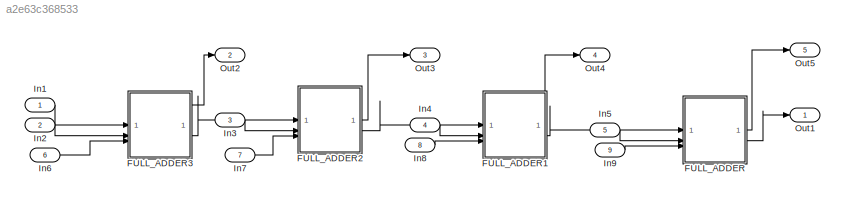
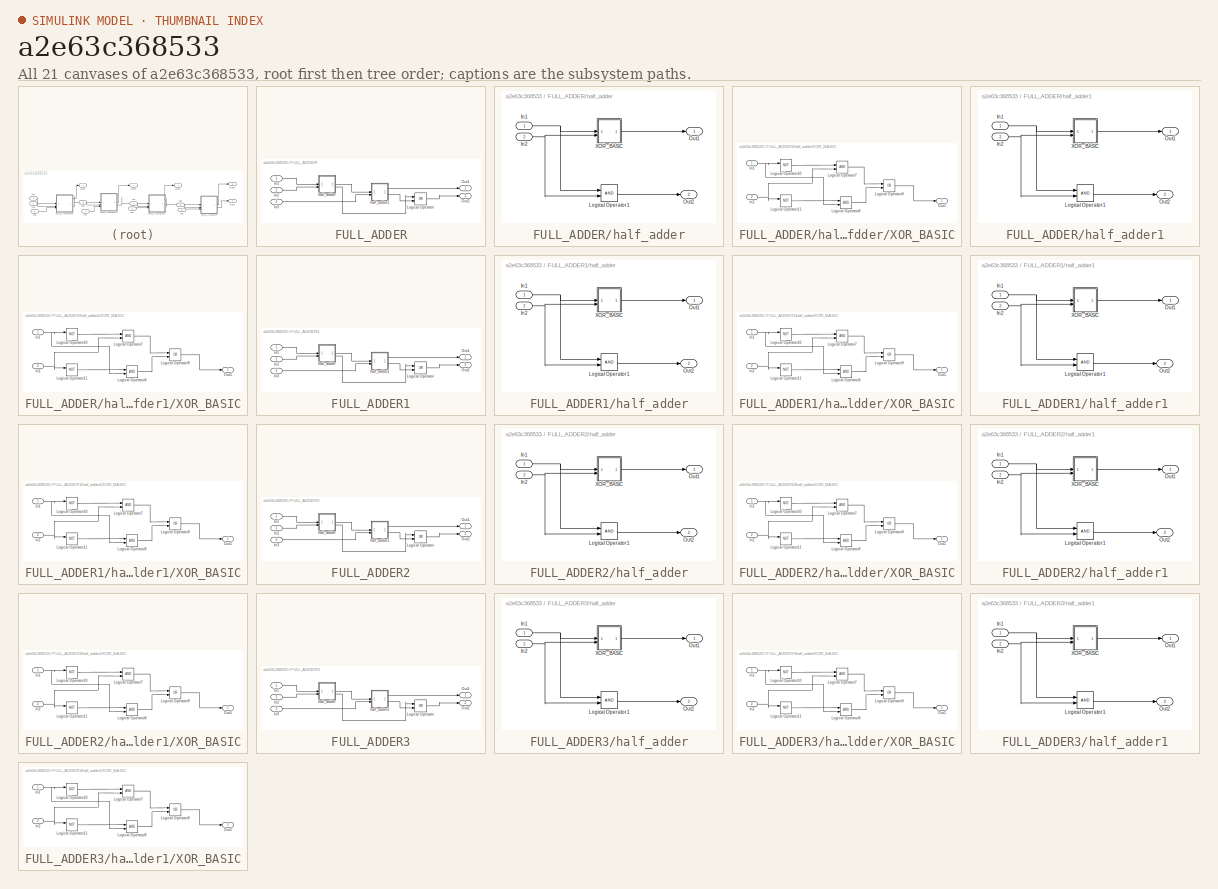
[diagram: thumbnail index - all 21 canvases of the model, root first then tree order]
MODEL slx_a2e63c368533
KIND model
CONFIG AbsTol = auto
CONFIG EnableMultiTasking = off
CONFIG FixedStep = auto
CONFIG MaxStep = auto
CONFIG MinStep = auto
CONFIG RelTol = 1e-3
CONFIG SampleTimeConstraint = Unconstrained
CONFIG SolverName = VariableStepAuto
CONFIG StartTime = 0.0
CONFIG StopTime = 10.0
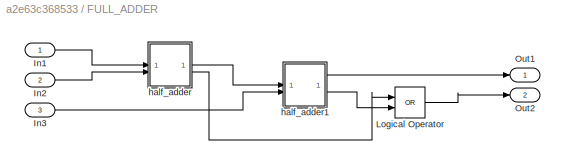
BLOCK [SubSystem] FULL_ADDER
BLOCK [Inport] FULL_ADDER/In1
BLOCK [Inport] FULL_ADDER/In2
  Port = 2
BLOCK [Inport] FULL_ADDER/In3
  Port = 3
BLOCK [Logic] FULL_ADDER/Logical Operator
  AllPortsSameDT = off
  Operator = OR
  OutDataTypeStr = boolean
BLOCK [Outport] FULL_ADDER/Out1
BLOCK [Outport] FULL_ADDER/Out2
  Port = 2
BLOCK [SubSystem] FULL_ADDER/half_adder
BLOCK [Inport] FULL_ADDER/half_adder/In1
BLOCK [Inport] FULL_ADDER/half_adder/In2
  Port = 2
BLOCK [Logic] FULL_ADDER/half_adder/Logical Operator1
  AllPortsSameDT = off
  OutDataTypeStr = boolean
BLOCK [Outport] FULL_ADDER/half_adder/Out1
BLOCK [Outport] FULL_ADDER/half_adder/Out2
  Port = 2
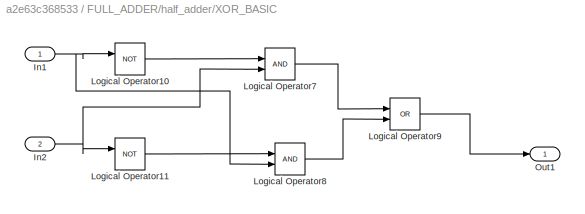
BLOCK [SubSystem] FULL_ADDER/half_adder/XOR_BASIC
BLOCK [Inport] FULL_ADDER/half_adder/XOR_BASIC/In1
BLOCK [Inport] FULL_ADDER/half_adder/XOR_BASIC/In2
  Port = 2
BLOCK [Logic] FULL_ADDER/half_adder/XOR_BASIC/Logical Operator10
  AllPortsSameDT = off
  IconShape = distinctive
  Operator = NOT
  OutDataTypeStr = boolean
BLOCK [Logic] FULL_ADDER/half_adder/XOR_BASIC/Logical Operator11
  AllPortsSameDT = off
  IconShape = distinctive
  Operator = NOT
  OutDataTypeStr = boolean
BLOCK [Logic] FULL_ADDER/half_adder/XOR_BASIC/Logical Operator7
  AllPortsSameDT = off
  IconShape = distinctive
  OutDataTypeStr = boolean
BLOCK [Logic] FULL_ADDER/half_adder/XOR_BASIC/Logical Operator8
  AllPortsSameDT = off
  IconShape = distinctive
  OutDataTypeStr = boolean
BLOCK [Logic] FULL_ADDER/half_adder/XOR_BASIC/Logical Operator9
  AllPortsSameDT = off
  IconShape = distinctive
  Operator = OR
  OutDataTypeStr = boolean
BLOCK [Outport] FULL_ADDER/half_adder/XOR_BASIC/Out1
BLOCK [SubSystem] FULL_ADDER/half_adder1
BLOCK [Inport] FULL_ADDER/half_adder1/In1
BLOCK [Inport] FULL_ADDER/half_adder1/In2
  Port = 2
BLOCK [Logic] FULL_ADDER/half_adder1/Logical Operator1
  AllPortsSameDT = off
  OutDataTypeStr = boolean
BLOCK [Outport] FULL_ADDER/half_adder1/Out1
BLOCK [Outport] FULL_ADDER/half_adder1/Out2
  Port = 2
BLOCK [SubSystem] FULL_ADDER/half_adder1/XOR_BASIC
BLOCK [Inport] FULL_ADDER/half_adder1/XOR_BASIC/In1
BLOCK [Inport] FULL_ADDER/half_adder1/XOR_BASIC/In2
  Port = 2
BLOCK [Logic] FULL_ADDER/half_adder1/XOR_BASIC/Logical Operator10
  AllPortsSameDT = off
  IconShape = distinctive
  Operator = NOT
  OutDataTypeStr = boolean
BLOCK [Logic] FULL_ADDER/half_adder1/XOR_BASIC/Logical Operator11
  AllPortsSameDT = off
  IconShape = distinctive
  Operator = NOT
  OutDataTypeStr = boolean
BLOCK [Logic] FULL_ADDER/half_adder1/XOR_BASIC/Logical Operator7
  AllPortsSameDT = off
  IconShape = distinctive
  OutDataTypeStr = boolean
BLOCK [Logic] FULL_ADDER/half_adder1/XOR_BASIC/Logical Operator8
  AllPortsSameDT = off
  IconShape = distinctive
  OutDataTypeStr = boolean
BLOCK [Logic] FULL_ADDER/half_adder1/XOR_BASIC/Logical Operator9
  AllPortsSameDT = off
  IconShape = distinctive
  Operator = OR
  OutDataTypeStr = boolean
BLOCK [Outport] FULL_ADDER/half_adder1/XOR_BASIC/Out1
BLOCK [SubSystem] FULL_ADDER1
BLOCK [Inport] FULL_ADDER1/In1
BLOCK [Inport] FULL_ADDER1/In2
  Port = 2
BLOCK [Inport] FULL_ADDER1/In3
  Port = 3
BLOCK [Logic] FULL_ADDER1/Logical Operator
  AllPortsSameDT = off
  Operator = OR
  OutDataTypeStr = boolean
BLOCK [Outport] FULL_ADDER1/Out1
BLOCK [Outport] FULL_ADDER1/Out2
  Port = 2
BLOCK [SubSystem] FULL_ADDER1/half_adder
BLOCK [Inport] FULL_ADDER1/half_adder/In1
BLOCK [Inport] FULL_ADDER1/half_adder/In2
  Port = 2
BLOCK [Logic] FULL_ADDER1/half_adder/Logical Operator1
  AllPortsSameDT = off
  OutDataTypeStr = boolean
BLOCK [Outport] FULL_ADDER1/half_adder/Out1
BLOCK [Outport] FULL_ADDER1/half_adder/Out2
  Port = 2
BLOCK [SubSystem] FULL_ADDER1/half_adder/XOR_BASIC
BLOCK [Inport] FULL_ADDER1/half_adder/XOR_BASIC/In1
BLOCK [Inport] FULL_ADDER1/half_adder/XOR_BASIC/In2
  Port = 2
BLOCK [Logic] FULL_ADDER1/half_adder/XOR_BASIC/Logical Operator10
  AllPortsSameDT = off
  IconShape = distinctive
  Operator = NOT
  OutDataTypeStr = boolean
BLOCK [Logic] FULL_ADDER1/half_adder/XOR_BASIC/Logical Operator11
  AllPortsSameDT = off
  IconShape = distinctive
  Operator = NOT
  OutDataTypeStr = boolean
BLOCK [Logic] FULL_ADDER1/half_adder/XOR_BASIC/Logical Operator7
  AllPortsSameDT = off
  IconShape = distinctive
  OutDataTypeStr = boolean
BLOCK [Logic] FULL_ADDER1/half_adder/XOR_BASIC/Logical Operator8
  AllPortsSameDT = off
  IconShape = distinctive
  OutDataTypeStr = boolean
BLOCK [Logic] FULL_ADDER1/half_adder/XOR_BASIC/Logical Operator9
  AllPortsSameDT = off
  IconShape = distinctive
  Operator = OR
  OutDataTypeStr = boolean
BLOCK [Outport] FULL_ADDER1/half_adder/XOR_BASIC/Out1
BLOCK [SubSystem] FULL_ADDER1/half_adder1
BLOCK [Inport] FULL_ADDER1/half_adder1/In1
BLOCK [Inport] FULL_ADDER1/half_adder1/In2
  Port = 2
BLOCK [Logic] FULL_ADDER1/half_adder1/Logical Operator1
  AllPortsSameDT = off
  OutDataTypeStr = boolean
BLOCK [Outport] FULL_ADDER1/half_adder1/Out1
BLOCK [Outport] FULL_ADDER1/half_adder1/Out2
  Port = 2
BLOCK [SubSystem] FULL_ADDER1/half_adder1/XOR_BASIC
BLOCK [Inport] FULL_ADDER1/half_adder1/XOR_BASIC/In1
BLOCK [Inport] FULL_ADDER1/half_adder1/XOR_BASIC/In2
  Port = 2
BLOCK [Logic] FULL_ADDER1/half_adder1/XOR_BASIC/Logical Operator10
  AllPortsSameDT = off
  IconShape = distinctive
  Operator = NOT
  OutDataTypeStr = boolean
BLOCK [Logic] FULL_ADDER1/half_adder1/XOR_BASIC/Logical Operator11
  AllPortsSameDT = off
  IconShape = distinctive
  Operator = NOT
  OutDataTypeStr = boolean
BLOCK [Logic] FULL_ADDER1/half_adder1/XOR_BASIC/Logical Operator7
  AllPortsSameDT = off
  IconShape = distinctive
  OutDataTypeStr = boolean
BLOCK [Logic] FULL_ADDER1/half_adder1/XOR_BASIC/Logical Operator8
  AllPortsSameDT = off
  IconShape = distinctive
  OutDataTypeStr = boolean
BLOCK [Logic] FULL_ADDER1/half_adder1/XOR_BASIC/Logical Operator9
  AllPortsSameDT = off
  IconShape = distinctive
  Operator = OR
  OutDataTypeStr = boolean
BLOCK [Outport] FULL_ADDER1/half_adder1/XOR_BASIC/Out1
BLOCK [SubSystem] FULL_ADDER2
BLOCK [Inport] FULL_ADDER2/In1
BLOCK [Inport] FULL_ADDER2/In2
  Port = 2
BLOCK [Inport] FULL_ADDER2/In3
  Port = 3
BLOCK [Logic] FULL_ADDER2/Logical Operator
  AllPortsSameDT = off
  Operator = OR
  OutDataTypeStr = boolean
BLOCK [Outport] FULL_ADDER2/Out1
BLOCK [Outport] FULL_ADDER2/Out2
  Port = 2
BLOCK [SubSystem] FULL_ADDER2/half_adder
BLOCK [Inport] FULL_ADDER2/half_adder/In1
BLOCK [Inport] FULL_ADDER2/half_adder/In2
  Port = 2
BLOCK [Logic] FULL_ADDER2/half_adder/Logical Operator1
  AllPortsSameDT = off
  OutDataTypeStr = boolean
BLOCK [Outport] FULL_ADDER2/half_adder/Out1
BLOCK [Outport] FULL_ADDER2/half_adder/Out2
  Port = 2
BLOCK [SubSystem] FULL_ADDER2/half_adder/XOR_BASIC
BLOCK [Inport] FULL_ADDER2/half_adder/XOR_BASIC/In1
BLOCK [Inport] FULL_ADDER2/half_adder/XOR_BASIC/In2
  Port = 2
BLOCK [Logic] FULL_ADDER2/half_adder/XOR_BASIC/Logical Operator10
  AllPortsSameDT = off
  IconShape = distinctive
  Operator = NOT
  OutDataTypeStr = boolean
BLOCK [Logic] FULL_ADDER2/half_adder/XOR_BASIC/Logical Operator11
  AllPortsSameDT = off
  IconShape = distinctive
  Operator = NOT
  OutDataTypeStr = boolean
BLOCK [Logic] FULL_ADDER2/half_adder/XOR_BASIC/Logical Operator7
  AllPortsSameDT = off
  IconShape = distinctive
  OutDataTypeStr = boolean
BLOCK [Logic] FULL_ADDER2/half_adder/XOR_BASIC/Logical Operator8
  AllPortsSameDT = off
  IconShape = distinctive
  OutDataTypeStr = boolean
BLOCK [Logic] FULL_ADDER2/half_adder/XOR_BASIC/Logical Operator9
  AllPortsSameDT = off
  IconShape = distinctive
  Operator = OR
  OutDataTypeStr = boolean
BLOCK [Outport] FULL_ADDER2/half_adder/XOR_BASIC/Out1
BLOCK [SubSystem] FULL_ADDER2/half_adder1
BLOCK [Inport] FULL_ADDER2/half_adder1/In1
BLOCK [Inport] FULL_ADDER2/half_adder1/In2
  Port = 2
BLOCK [Logic] FULL_ADDER2/half_adder1/Logical Operator1
  AllPortsSameDT = off
  OutDataTypeStr = boolean
BLOCK [Outport] FULL_ADDER2/half_adder1/Out1
BLOCK [Outport] FULL_ADDER2/half_adder1/Out2
  Port = 2
BLOCK [SubSystem] FULL_ADDER2/half_adder1/XOR_BASIC
BLOCK [Inport] FULL_ADDER2/half_adder1/XOR_BASIC/In1
BLOCK [Inport] FULL_ADDER2/half_adder1/XOR_BASIC/In2
  Port = 2
BLOCK [Logic] FULL_ADDER2/half_adder1/XOR_BASIC/Logical Operator10
  AllPortsSameDT = off
  IconShape = distinctive
  Operator = NOT
  OutDataTypeStr = boolean
BLOCK [Logic] FULL_ADDER2/half_adder1/XOR_BASIC/Logical Operator11
  AllPortsSameDT = off
  IconShape = distinctive
  Operator = NOT
  OutDataTypeStr = boolean
BLOCK [Logic] FULL_ADDER2/half_adder1/XOR_BASIC/Logical Operator7
  AllPortsSameDT = off
  IconShape = distinctive
  OutDataTypeStr = boolean
BLOCK [Logic] FULL_ADDER2/half_adder1/XOR_BASIC/Logical Operator8
  AllPortsSameDT = off
  IconShape = distinctive
  OutDataTypeStr = boolean
BLOCK [Logic] FULL_ADDER2/half_adder1/XOR_BASIC/Logical Operator9
  AllPortsSameDT = off
  IconShape = distinctive
  Operator = OR
  OutDataTypeStr = boolean
BLOCK [Outport] FULL_ADDER2/half_adder1/XOR_BASIC/Out1
BLOCK [SubSystem] FULL_ADDER3
BLOCK [Inport] FULL_ADDER3/In1
BLOCK [Inport] FULL_ADDER3/In2
  Port = 2
BLOCK [Inport] FULL_ADDER3/In3
  Port = 3
BLOCK [Logic] FULL_ADDER3/Logical Operator
  AllPortsSameDT = off
  Operator = OR
  OutDataTypeStr = boolean
BLOCK [Outport] FULL_ADDER3/Out1
BLOCK [Outport] FULL_ADDER3/Out2
  Port = 2
BLOCK [SubSystem] FULL_ADDER3/half_adder
BLOCK [Inport] FULL_ADDER3/half_adder/In1
BLOCK [Inport] FULL_ADDER3/half_adder/In2
  Port = 2
BLOCK [Logic] FULL_ADDER3/half_adder/Logical Operator1
  AllPortsSameDT = off
  OutDataTypeStr = boolean
BLOCK [Outport] FULL_ADDER3/half_adder/Out1
BLOCK [Outport] FULL_ADDER3/half_adder/Out2
  Port = 2
BLOCK [SubSystem] FULL_ADDER3/half_adder/XOR_BASIC
BLOCK [Inport] FULL_ADDER3/half_adder/XOR_BASIC/In1
BLOCK [Inport] FULL_ADDER3/half_adder/XOR_BASIC/In2
  Port = 2
BLOCK [Logic] FULL_ADDER3/half_adder/XOR_BASIC/Logical Operator10
  AllPortsSameDT = off
  IconShape = distinctive
  Operator = NOT
  OutDataTypeStr = boolean
BLOCK [Logic] FULL_ADDER3/half_adder/XOR_BASIC/Logical Operator11
  AllPortsSameDT = off
  IconShape = distinctive
  Operator = NOT
  OutDataTypeStr = boolean
BLOCK [Logic] FULL_ADDER3/half_adder/XOR_BASIC/Logical Operator7
  AllPortsSameDT = off
  IconShape = distinctive
  OutDataTypeStr = boolean
BLOCK [Logic] FULL_ADDER3/half_adder/XOR_BASIC/Logical Operator8
  AllPortsSameDT = off
  IconShape = distinctive
  OutDataTypeStr = boolean
BLOCK [Logic] FULL_ADDER3/half_adder/XOR_BASIC/Logical Operator9
  AllPortsSameDT = off
  IconShape = distinctive
  Operator = OR
  OutDataTypeStr = boolean
BLOCK [Outport] FULL_ADDER3/half_adder/XOR_BASIC/Out1
BLOCK [SubSystem] FULL_ADDER3/half_adder1
BLOCK [Inport] FULL_ADDER3/half_adder1/In1
BLOCK [Inport] FULL_ADDER3/half_adder1/In2
  Port = 2
BLOCK [Logic] FULL_ADDER3/half_adder1/Logical Operator1
  AllPortsSameDT = off
  OutDataTypeStr = boolean
BLOCK [Outport] FULL_ADDER3/half_adder1/Out1
BLOCK [Outport] FULL_ADDER3/half_adder1/Out2
  Port = 2
BLOCK [SubSystem] FULL_ADDER3/half_adder1/XOR_BASIC
BLOCK [Inport] FULL_ADDER3/half_adder1/XOR_BASIC/In1
BLOCK [Inport] FULL_ADDER3/half_adder1/XOR_BASIC/In2
  Port = 2
BLOCK [Logic] FULL_ADDER3/half_adder1/XOR_BASIC/Logical Operator10
  AllPortsSameDT = off
  IconShape = distinctive
  Operator = NOT
  OutDataTypeStr = boolean
BLOCK [Logic] FULL_ADDER3/half_adder1/XOR_BASIC/Logical Operator11
  AllPortsSameDT = off
  IconShape = distinctive
  Operator = NOT
  OutDataTypeStr = boolean
BLOCK [Logic] FULL_ADDER3/half_adder1/XOR_BASIC/Logical Operator7
  AllPortsSameDT = off
  IconShape = distinctive
  OutDataTypeStr = boolean
BLOCK [Logic] FULL_ADDER3/half_adder1/XOR_BASIC/Logical Operator8
  AllPortsSameDT = off
  IconShape = distinctive
  OutDataTypeStr = boolean
BLOCK [Logic] FULL_ADDER3/half_adder1/XOR_BASIC/Logical Operator9
  AllPortsSameDT = off
  IconShape = distinctive
  Operator = OR
  OutDataTypeStr = boolean
BLOCK [Outport] FULL_ADDER3/half_adder1/XOR_BASIC/Out1
BLOCK [Inport] In1
BLOCK [Inport] In2
  Port = 2
BLOCK [Inport] In3
  Port = 3
BLOCK [Inport] In4
  Port = 4
BLOCK [Inport] In5
  Port = 5
BLOCK [Inport] In6
  Port = 6
BLOCK [Inport] In7
  Port = 7
BLOCK [Inport] In8
  Port = 8
BLOCK [Inport] In9
  Port = 9
BLOCK [Outport] Out1
BLOCK [Outport] Out2
  Port = 2
BLOCK [Outport] Out3
  Port = 3
BLOCK [Outport] Out4
  Port = 4
BLOCK [Outport] Out5
  Port = 5
LINE FULL_ADDER/In1:1 -> FULL_ADDER/half_adder:1
LINE FULL_ADDER/In2:1 -> FULL_ADDER/half_adder:2
LINE FULL_ADDER/In3:1 -> FULL_ADDER/half_adder1:2
LINE FULL_ADDER/Logical Operator:1 -> FULL_ADDER/Out2:1
NET FULL_ADDER/half_adder/In1:1 -> FULL_ADDER/half_adder/Logical Operator1:1, FULL_ADDER/half_adder/XOR_BASIC:1
NET FULL_ADDER/half_adder/In2:1 -> FULL_ADDER/half_adder/Logical Operator1:2, FULL_ADDER/half_adder/XOR_BASIC:2
LINE FULL_ADDER/half_adder/Logical Operator1:1 -> FULL_ADDER/half_adder/Out2:1
NET FULL_ADDER/half_adder/XOR_BASIC/In1:1 -> FULL_ADDER/half_adder/XOR_BASIC/Logical Operator10:1, FULL_ADDER/half_adder/XOR_BASIC/Logical Operator8:2
NET FULL_ADDER/half_adder/XOR_BASIC/In2:1 -> FULL_ADDER/half_adder/XOR_BASIC/Logical Operator11:1, FULL_ADDER/half_adder/XOR_BASIC/Logical Operator7:2
LINE FULL_ADDER/half_adder/XOR_BASIC/Logical Operator10:1 -> FULL_ADDER/half_adder/XOR_BASIC/Logical Operator7:1
LINE FULL_ADDER/half_adder/XOR_BASIC/Logical Operator11:1 -> FULL_ADDER/half_adder/XOR_BASIC/Logical Operator8:1
LINE FULL_ADDER/half_adder/XOR_BASIC/Logical Operator7:1 -> FULL_ADDER/half_adder/XOR_BASIC/Logical Operator9:1
LINE FULL_ADDER/half_adder/XOR_BASIC/Logical Operator8:1 -> FULL_ADDER/half_adder/XOR_BASIC/Logical Operator9:2
LINE FULL_ADDER/half_adder/XOR_BASIC/Logical Operator9:1 -> FULL_ADDER/half_adder/XOR_BASIC/Out1:1
LINE FULL_ADDER/half_adder/XOR_BASIC:1 -> FULL_ADDER/half_adder/Out1:1
NET FULL_ADDER/half_adder1/In1:1 -> FULL_ADDER/half_adder1/Logical Operator1:1, FULL_ADDER/half_adder1/XOR_BASIC:1
NET FULL_ADDER/half_adder1/In2:1 -> FULL_ADDER/half_adder1/Logical Operator1:2, FULL_ADDER/half_adder1/XOR_BASIC:2
LINE FULL_ADDER/half_adder1/Logical Operator1:1 -> FULL_ADDER/half_adder1/Out2:1
NET FULL_ADDER/half_adder1/XOR_BASIC/In1:1 -> FULL_ADDER/half_adder1/XOR_BASIC/Logical Operator10:1, FULL_ADDER/half_adder1/XOR_BASIC/Logical Operator8:2
NET FULL_ADDER/half_adder1/XOR_BASIC/In2:1 -> FULL_ADDER/half_adder1/XOR_BASIC/Logical Operator11:1, FULL_ADDER/half_adder1/XOR_BASIC/Logical Operator7:2
LINE FULL_ADDER/half_adder1/XOR_BASIC/Logical Operator10:1 -> FULL_ADDER/half_adder1/XOR_BASIC/Logical Operator7:1
LINE FULL_ADDER/half_adder1/XOR_BASIC/Logical Operator11:1 -> FULL_ADDER/half_adder1/XOR_BASIC/Logical Operator8:1
LINE FULL_ADDER/half_adder1/XOR_BASIC/Logical Operator7:1 -> FULL_ADDER/half_adder1/XOR_BASIC/Logical Operator9:1
LINE FULL_ADDER/half_adder1/XOR_BASIC/Logical Operator8:1 -> FULL_ADDER/half_adder1/XOR_BASIC/Logical Operator9:2
LINE FULL_ADDER/half_adder1/XOR_BASIC/Logical Operator9:1 -> FULL_ADDER/half_adder1/XOR_BASIC/Out1:1
LINE FULL_ADDER/half_adder1/XOR_BASIC:1 -> FULL_ADDER/half_adder1/Out1:1
LINE FULL_ADDER/half_adder1:1 -> FULL_ADDER/Out1:1
LINE FULL_ADDER/half_adder1:2 -> FULL_ADDER/Logical Operator:2
LINE FULL_ADDER/half_adder:1 -> FULL_ADDER/half_adder1:1
LINE FULL_ADDER/half_adder:2 -> FULL_ADDER/Logical Operator:1
LINE FULL_ADDER1/In1:1 -> FULL_ADDER1/half_adder:1
LINE FULL_ADDER1/In2:1 -> FULL_ADDER1/half_adder:2
LINE FULL_ADDER1/In3:1 -> FULL_ADDER1/half_adder1:2
LINE FULL_ADDER1/Logical Operator:1 -> FULL_ADDER1/Out2:1
NET FULL_ADDER1/half_adder/In1:1 -> FULL_ADDER1/half_adder/Logical Operator1:1, FULL_ADDER1/half_adder/XOR_BASIC:1
NET FULL_ADDER1/half_adder/In2:1 -> FULL_ADDER1/half_adder/Logical Operator1:2, FULL_ADDER1/half_adder/XOR_BASIC:2
LINE FULL_ADDER1/half_adder/Logical Operator1:1 -> FULL_ADDER1/half_adder/Out2:1
NET FULL_ADDER1/half_adder/XOR_BASIC/In1:1 -> FULL_ADDER1/half_adder/XOR_BASIC/Logical Operator10:1, FULL_ADDER1/half_adder/XOR_BASIC/Logical Operator8:2
NET FULL_ADDER1/half_adder/XOR_BASIC/In2:1 -> FULL_ADDER1/half_adder/XOR_BASIC/Logical Operator11:1, FULL_ADDER1/half_adder/XOR_BASIC/Logical Operator7:2
LINE FULL_ADDER1/half_adder/XOR_BASIC/Logical Operator10:1 -> FULL_ADDER1/half_adder/XOR_BASIC/Logical Operator7:1
LINE FULL_ADDER1/half_adder/XOR_BASIC/Logical Operator11:1 -> FULL_ADDER1/half_adder/XOR_BASIC/Logical Operator8:1
LINE FULL_ADDER1/half_adder/XOR_BASIC/Logical Operator7:1 -> FULL_ADDER1/half_adder/XOR_BASIC/Logical Operator9:1
LINE FULL_ADDER1/half_adder/XOR_BASIC/Logical Operator8:1 -> FULL_ADDER1/half_adder/XOR_BASIC/Logical Operator9:2
LINE FULL_ADDER1/half_adder/XOR_BASIC/Logical Operator9:1 -> FULL_ADDER1/half_adder/XOR_BASIC/Out1:1
LINE FULL_ADDER1/half_adder/XOR_BASIC:1 -> FULL_ADDER1/half_adder/Out1:1
NET FULL_ADDER1/half_adder1/In1:1 -> FULL_ADDER1/half_adder1/Logical Operator1:1, FULL_ADDER1/half_adder1/XOR_BASIC:1
NET FULL_ADDER1/half_adder1/In2:1 -> FULL_ADDER1/half_adder1/Logical Operator1:2, FULL_ADDER1/half_adder1/XOR_BASIC:2
LINE FULL_ADDER1/half_adder1/Logical Operator1:1 -> FULL_ADDER1/half_adder1/Out2:1
NET FULL_ADDER1/half_adder1/XOR_BASIC/In1:1 -> FULL_ADDER1/half_adder1/XOR_BASIC/Logical Operator10:1, FULL_ADDER1/half_adder1/XOR_BASIC/Logical Operator8:2
NET FULL_ADDER1/half_adder1/XOR_BASIC/In2:1 -> FULL_ADDER1/half_adder1/XOR_BASIC/Logical Operator11:1, FULL_ADDER1/half_adder1/XOR_BASIC/Logical Operator7:2
LINE FULL_ADDER1/half_adder1/XOR_BASIC/Logical Operator10:1 -> FULL_ADDER1/half_adder1/XOR_BASIC/Logical Operator7:1
LINE FULL_ADDER1/half_adder1/XOR_BASIC/Logical Operator11:1 -> FULL_ADDER1/half_adder1/XOR_BASIC/Logical Operator8:1
LINE FULL_ADDER1/half_adder1/XOR_BASIC/Logical Operator7:1 -> FULL_ADDER1/half_adder1/XOR_BASIC/Logical Operator9:1
LINE FULL_ADDER1/half_adder1/XOR_BASIC/Logical Operator8:1 -> FULL_ADDER1/half_adder1/XOR_BASIC/Logical Operator9:2
LINE FULL_ADDER1/half_adder1/XOR_BASIC/Logical Operator9:1 -> FULL_ADDER1/half_adder1/XOR_BASIC/Out1:1
LINE FULL_ADDER1/half_adder1/XOR_BASIC:1 -> FULL_ADDER1/half_adder1/Out1:1
LINE FULL_ADDER1/half_adder1:1 -> FULL_ADDER1/Out1:1
LINE FULL_ADDER1/half_adder1:2 -> FULL_ADDER1/Logical Operator:2
LINE FULL_ADDER1/half_adder:1 -> FULL_ADDER1/half_adder1:1
LINE FULL_ADDER1/half_adder:2 -> FULL_ADDER1/Logical Operator:1
LINE FULL_ADDER1:1 -> Out4:1
LINE FULL_ADDER1:2 -> FULL_ADDER:1
LINE FULL_ADDER2/In1:1 -> FULL_ADDER2/half_adder:1
LINE FULL_ADDER2/In2:1 -> FULL_ADDER2/half_adder:2
LINE FULL_ADDER2/In3:1 -> FULL_ADDER2/half_adder1:2
LINE FULL_ADDER2/Logical Operator:1 -> FULL_ADDER2/Out2:1
NET FULL_ADDER2/half_adder/In1:1 -> FULL_ADDER2/half_adder/Logical Operator1:1, FULL_ADDER2/half_adder/XOR_BASIC:1
NET FULL_ADDER2/half_adder/In2:1 -> FULL_ADDER2/half_adder/Logical Operator1:2, FULL_ADDER2/half_adder/XOR_BASIC:2
LINE FULL_ADDER2/half_adder/Logical Operator1:1 -> FULL_ADDER2/half_adder/Out2:1
NET FULL_ADDER2/half_adder/XOR_BASIC/In1:1 -> FULL_ADDER2/half_adder/XOR_BASIC/Logical Operator10:1, FULL_ADDER2/half_adder/XOR_BASIC/Logical Operator8:2
NET FULL_ADDER2/half_adder/XOR_BASIC/In2:1 -> FULL_ADDER2/half_adder/XOR_BASIC/Logical Operator11:1, FULL_ADDER2/half_adder/XOR_BASIC/Logical Operator7:2
LINE FULL_ADDER2/half_adder/XOR_BASIC/Logical Operator10:1 -> FULL_ADDER2/half_adder/XOR_BASIC/Logical Operator7:1
LINE FULL_ADDER2/half_adder/XOR_BASIC/Logical Operator11:1 -> FULL_ADDER2/half_adder/XOR_BASIC/Logical Operator8:1
LINE FULL_ADDER2/half_adder/XOR_BASIC/Logical Operator7:1 -> FULL_ADDER2/half_adder/XOR_BASIC/Logical Operator9:1
LINE FULL_ADDER2/half_adder/XOR_BASIC/Logical Operator8:1 -> FULL_ADDER2/half_adder/XOR_BASIC/Logical Operator9:2
LINE FULL_ADDER2/half_adder/XOR_BASIC/Logical Operator9:1 -> FULL_ADDER2/half_adder/XOR_BASIC/Out1:1
LINE FULL_ADDER2/half_adder/XOR_BASIC:1 -> FULL_ADDER2/half_adder/Out1:1
NET FULL_ADDER2/half_adder1/In1:1 -> FULL_ADDER2/half_adder1/Logical Operator1:1, FULL_ADDER2/half_adder1/XOR_BASIC:1
NET FULL_ADDER2/half_adder1/In2:1 -> FULL_ADDER2/half_adder1/Logical Operator1:2, FULL_ADDER2/half_adder1/XOR_BASIC:2
LINE FULL_ADDER2/half_adder1/Logical Operator1:1 -> FULL_ADDER2/half_adder1/Out2:1
NET FULL_ADDER2/half_adder1/XOR_BASIC/In1:1 -> FULL_ADDER2/half_adder1/XOR_BASIC/Logical Operator10:1, FULL_ADDER2/half_adder1/XOR_BASIC/Logical Operator8:2
NET FULL_ADDER2/half_adder1/XOR_BASIC/In2:1 -> FULL_ADDER2/half_adder1/XOR_BASIC/Logical Operator11:1, FULL_ADDER2/half_adder1/XOR_BASIC/Logical Operator7:2
LINE FULL_ADDER2/half_adder1/XOR_BASIC/Logical Operator10:1 -> FULL_ADDER2/half_adder1/XOR_BASIC/Logical Operator7:1
LINE FULL_ADDER2/half_adder1/XOR_BASIC/Logical Operator11:1 -> FULL_ADDER2/half_adder1/XOR_BASIC/Logical Operator8:1
LINE FULL_ADDER2/half_adder1/XOR_BASIC/Logical Operator7:1 -> FULL_ADDER2/half_adder1/XOR_BASIC/Logical Operator9:1
LINE FULL_ADDER2/half_adder1/XOR_BASIC/Logical Operator8:1 -> FULL_ADDER2/half_adder1/XOR_BASIC/Logical Operator9:2
LINE FULL_ADDER2/half_adder1/XOR_BASIC/Logical Operator9:1 -> FULL_ADDER2/half_adder1/XOR_BASIC/Out1:1
LINE FULL_ADDER2/half_adder1/XOR_BASIC:1 -> FULL_ADDER2/half_adder1/Out1:1
LINE FULL_ADDER2/half_adder1:1 -> FULL_ADDER2/Out1:1
LINE FULL_ADDER2/half_adder1:2 -> FULL_ADDER2/Logical Operator:2
LINE FULL_ADDER2/half_adder:1 -> FULL_ADDER2/half_adder1:1
LINE FULL_ADDER2/half_adder:2 -> FULL_ADDER2/Logical Operator:1
LINE FULL_ADDER2:1 -> Out3:1
LINE FULL_ADDER2:2 -> FULL_ADDER1:1
LINE FULL_ADDER3/In1:1 -> FULL_ADDER3/half_adder:1
LINE FULL_ADDER3/In2:1 -> FULL_ADDER3/half_adder:2
LINE FULL_ADDER3/In3:1 -> FULL_ADDER3/half_adder1:2
LINE FULL_ADDER3/Logical Operator:1 -> FULL_ADDER3/Out2:1
NET FULL_ADDER3/half_adder/In1:1 -> FULL_ADDER3/half_adder/Logical Operator1:1, FULL_ADDER3/half_adder/XOR_BASIC:1
NET FULL_ADDER3/half_adder/In2:1 -> FULL_ADDER3/half_adder/Logical Operator1:2, FULL_ADDER3/half_adder/XOR_BASIC:2
LINE FULL_ADDER3/half_adder/Logical Operator1:1 -> FULL_ADDER3/half_adder/Out2:1
NET FULL_ADDER3/half_adder/XOR_BASIC/In1:1 -> FULL_ADDER3/half_adder/XOR_BASIC/Logical Operator10:1, FULL_ADDER3/half_adder/XOR_BASIC/Logical Operator8:2
NET FULL_ADDER3/half_adder/XOR_BASIC/In2:1 -> FULL_ADDER3/half_adder/XOR_BASIC/Logical Operator11:1, FULL_ADDER3/half_adder/XOR_BASIC/Logical Operator7:2
LINE FULL_ADDER3/half_adder/XOR_BASIC/Logical Operator10:1 -> FULL_ADDER3/half_adder/XOR_BASIC/Logical Operator7:1
LINE FULL_ADDER3/half_adder/XOR_BASIC/Logical Operator11:1 -> FULL_ADDER3/half_adder/XOR_BASIC/Logical Operator8:1
LINE FULL_ADDER3/half_adder/XOR_BASIC/Logical Operator7:1 -> FULL_ADDER3/half_adder/XOR_BASIC/Logical Operator9:1
LINE FULL_ADDER3/half_adder/XOR_BASIC/Logical Operator8:1 -> FULL_ADDER3/half_adder/XOR_BASIC/Logical Operator9:2
LINE FULL_ADDER3/half_adder/XOR_BASIC/Logical Operator9:1 -> FULL_ADDER3/half_adder/XOR_BASIC/Out1:1
LINE FULL_ADDER3/half_adder/XOR_BASIC:1 -> FULL_ADDER3/half_adder/Out1:1
NET FULL_ADDER3/half_adder1/In1:1 -> FULL_ADDER3/half_adder1/Logical Operator1:1, FULL_ADDER3/half_adder1/XOR_BASIC:1
NET FULL_ADDER3/half_adder1/In2:1 -> FULL_ADDER3/half_adder1/Logical Operator1:2, FULL_ADDER3/half_adder1/XOR_BASIC:2
LINE FULL_ADDER3/half_adder1/Logical Operator1:1 -> FULL_ADDER3/half_adder1/Out2:1
NET FULL_ADDER3/half_adder1/XOR_BASIC/In1:1 -> FULL_ADDER3/half_adder1/XOR_BASIC/Logical Operator10:1, FULL_ADDER3/half_adder1/XOR_BASIC/Logical Operator8:2
NET FULL_ADDER3/half_adder1/XOR_BASIC/In2:1 -> FULL_ADDER3/half_adder1/XOR_BASIC/Logical Operator11:1, FULL_ADDER3/half_adder1/XOR_BASIC/Logical Operator7:2
LINE FULL_ADDER3/half_adder1/XOR_BASIC/Logical Operator10:1 -> FULL_ADDER3/half_adder1/XOR_BASIC/Logical Operator7:1
LINE FULL_ADDER3/half_adder1/XOR_BASIC/Logical Operator11:1 -> FULL_ADDER3/half_adder1/XOR_BASIC/Logical Operator8:1
LINE FULL_ADDER3/half_adder1/XOR_BASIC/Logical Operator7:1 -> FULL_ADDER3/half_adder1/XOR_BASIC/Logical Operator9:1
LINE FULL_ADDER3/half_adder1/XOR_BASIC/Logical Operator8:1 -> FULL_ADDER3/half_adder1/XOR_BASIC/Logical Operator9:2
LINE FULL_ADDER3/half_adder1/XOR_BASIC/Logical Operator9:1 -> FULL_ADDER3/half_adder1/XOR_BASIC/Out1:1
LINE FULL_ADDER3/half_adder1/XOR_BASIC:1 -> FULL_ADDER3/half_adder1/Out1:1
LINE FULL_ADDER3/half_adder1:1 -> FULL_ADDER3/Out1:1
LINE FULL_ADDER3/half_adder1:2 -> FULL_ADDER3/Logical Operator:2
LINE FULL_ADDER3/half_adder:1 -> FULL_ADDER3/half_adder1:1
LINE FULL_ADDER3/half_adder:2 -> FULL_ADDER3/Logical Operator:1
LINE FULL_ADDER3:1 -> Out2:1
LINE FULL_ADDER3:2 -> FULL_ADDER2:1
LINE FULL_ADDER:1 -> Out5:1
LINE FULL_ADDER:2 -> Out1:1
LINE In1:1 -> FULL_ADDER3:1
LINE In2:1 -> FULL_ADDER3:2
LINE In3:1 -> FULL_ADDER2:2
LINE In4:1 -> FULL_ADDER1:2
LINE In5:1 -> FULL_ADDER:2
LINE In6:1 -> FULL_ADDER3:3
LINE In7:1 -> FULL_ADDER2:3
LINE In8:1 -> FULL_ADDER1:3
LINE In9:1 -> FULL_ADDER:3
note: NET lines group one-source signal fan-out (src -> all destinations, sorted); 1:1 wires keep LINE
